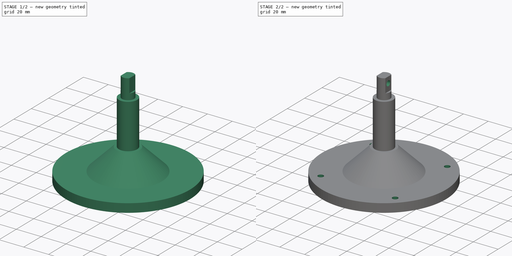
[diagram: build sequence overview — one tinted view per stage of 2, left to right]
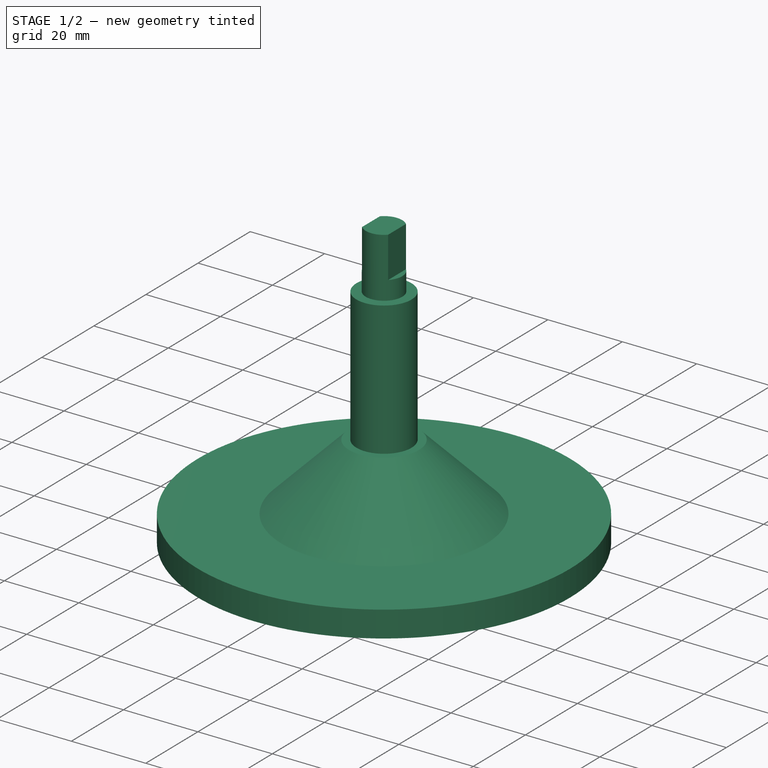
[diagram: stage 1 of 2 — iso view after this stage's code; geometry added in this stage tinted green]
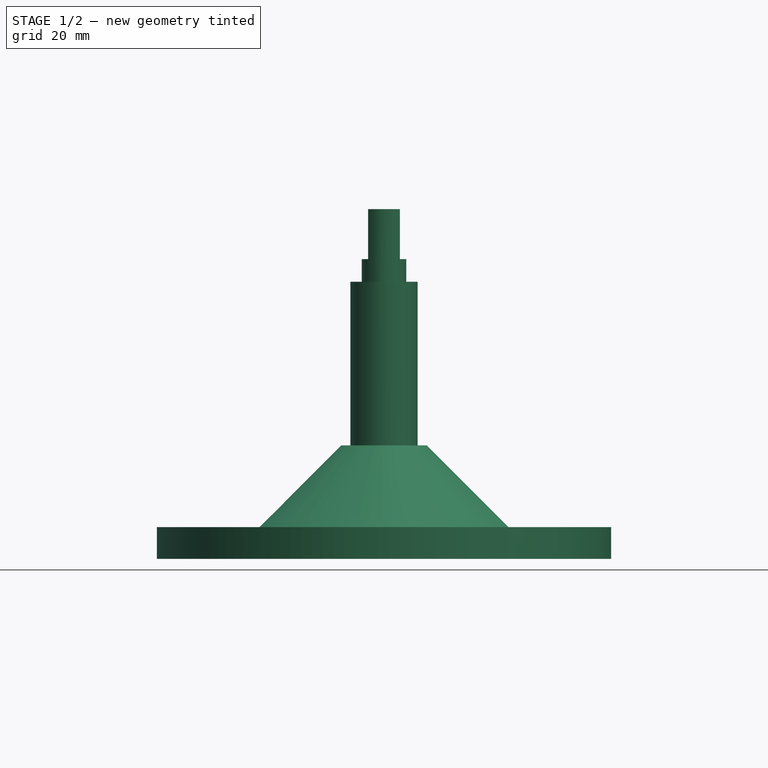
[diagram: stage 1 of 2 — front view after this stage's code; geometry added in this stage tinted green]
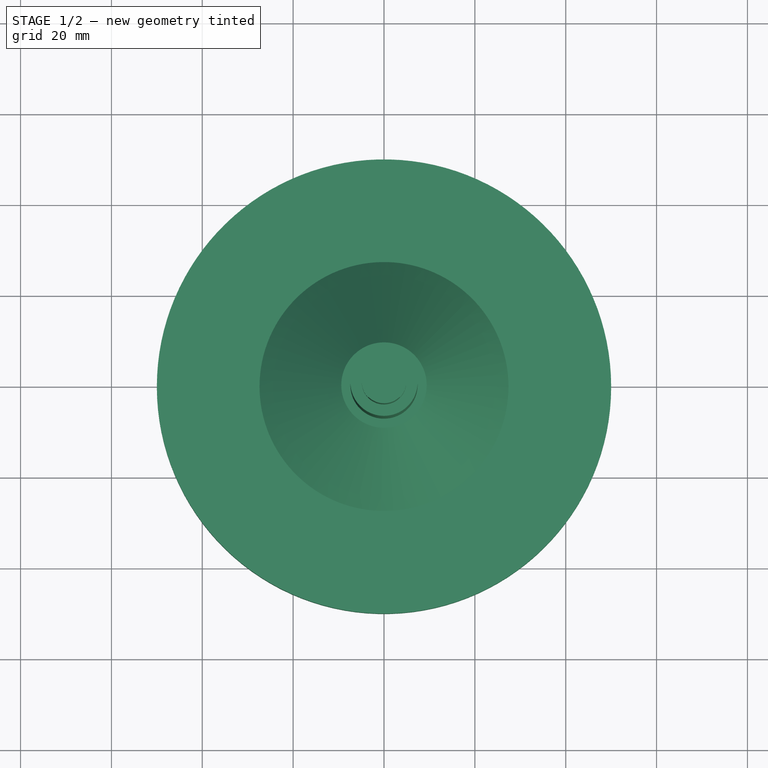
[diagram: stage 1 of 2 — top view after this stage's code; geometry added in this stage tinted green]
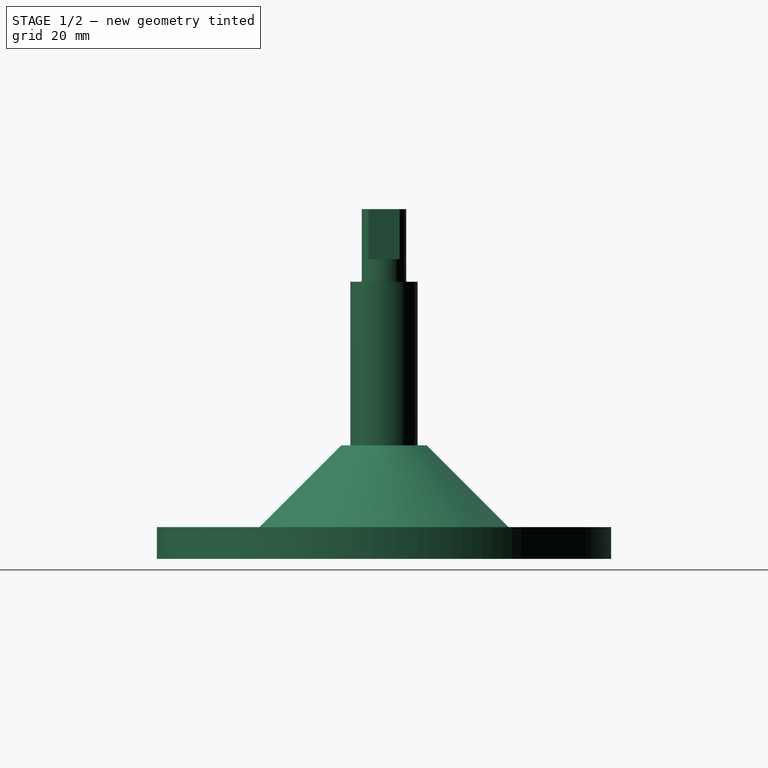
[diagram: stage 1 of 2 — right view after this stage's code; geometry added in this stage tinted green]
FCSTD DOCUMENT  (FreeCAD 0.19R22262 (Git))
Label: ToolChangerHolder_V2_Pillar
License: All rights reserved
LicenseURL: http://en.wikipedia.org/wiki/All_rights_reserved
objects: Sketcher::SketchObject×4, PartDesign::Plane×3, PartDesign::Pocket×3, PartDesign::Revolution×1, PartDesign::Body×1
note: 16 computed .brp shape members not serialized (recipe doc carries the construction recipe); baked Part::Feature solids carry a one-line shape summary decoded from their .brp

FEATURE [Sketcher::SketchObject] Sketch
  MapMode = 5
  Placement = pos=(0,0,0) rot=(1,0,0;1.5708rad)
  Support = -> [XZ_Plane]
  sketch-geometry (10):
    g0: LineSegment StartX=0 StartY=0 StartZ=0 EndX=50 EndY=0 EndZ=0
    g1: LineSegment StartX=50 StartY=0 StartZ=0 EndX=50 EndY=7 EndZ=0
    g2: LineSegment StartX=50 StartY=7 StartZ=0 EndX=27.4 EndY=7 EndZ=0
    g3: LineSegment StartX=27.4 StartY=7 StartZ=0 EndX=9.4 EndY=25 EndZ=0
    g4: LineSegment StartX=9.4 StartY=25 StartZ=0 EndX=7.4 EndY=25 EndZ=0
    g5: LineSegment StartX=7.4 StartY=25 StartZ=0 EndX=7.4 EndY=61 EndZ=0
    g6: LineSegment StartX=7.4 StartY=61 StartZ=0 EndX=4.9 EndY=61 EndZ=0
    g7: LineSegment StartX=4.9 StartY=61 StartZ=0 EndX=4.9 EndY=77 EndZ=0
    g8: LineSegment StartX=4.9 StartY=77 StartZ=0 EndX=0 EndY=77 EndZ=0
    g9: LineSegment StartX=0 StartY=77 StartZ=0 EndX=0 EndY=0 EndZ=0
  constraints (29):
    c: Coincident(g-1,g0)
    c: Horizontal(g0)
    c: Coincident(g0,g1)
    c: Vertical(g1)
    c: Coincident(g1,g2)
    c: Horizontal(g2)
    c: Coincident(g2,g3)
    c: Coincident(g3,g4)
    c: Horizontal(g4)
    c: Coincident(g4,g5)
    c: Vertical(g5)
    c: Coincident(g5,g6)
    c: Coincident(g6,g7)
    c: Vertical(g7)
    c: Coincident(g7,g8)
    c: Horizontal(g8)
    c: Coincident(g8,g9)
    c: Coincident(g9,g0)
    c: Vertical(g9)
    c: DistanceX(g0,g0) = 50
    c: DistanceY(g1,g1) = 7
    c: Angle(g3,g-1) = 0.785398
    c: DistanceX(g4,g4) = 2
    c: DistanceY(g0,g4) = 25
    c: DistanceX(g0,g4) = 7.4
    c: DistanceX(g0,g6) = 4.9
    c: DistanceY(g4,g6) = 36
    c: Horizontal(g6)
    c: DistanceY(g6,g8) = 16
FEATURE [PartDesign::Revolution] Revolution
  Angle = 360
  Axis = (0,2e-16,1)
  Base = (0,0,0)
  Placement = pos=(0,0,0) rot=(1,0,0;1.5708rad)
  Profile = -> Sketch
  ReferenceAxis = -> Sketch [V_Axis]
  Refine = true
  Reversed = true
FEATURE [PartDesign::Plane] DatumPlane
  Length = 119.74
  MapMode = 5
  Placement = pos=(0,5.13e-14,77) rot=(0,0,1;3.14159rad)
  ResizeMode = 0
  Support = -> [Revolution]
  Width = 119.853
FEATURE [Sketcher::SketchObject] Sketch001
  MapMode = 5
  Placement = pos=(0,5.13e-14,77) rot=(0,0,1;3.14159rad)
  Support = -> [DatumPlane]
  sketch-geometry (8):
    g0: LineSegment StartX=-3.5 StartY=6 StartZ=0 EndX=3.5 EndY=6 EndZ=0
    g1: LineSegment StartX=3.5 StartY=6 StartZ=0 EndX=3.5 EndY=-6 EndZ=0
    g2: LineSegment StartX=3.5 StartY=-6 StartZ=0 EndX=-3.5 EndY=-6 EndZ=0
    g3: LineSegment StartX=-3.5 StartY=-6 StartZ=0 EndX=-3.5 EndY=6 EndZ=0
    g4: LineSegment StartX=-6.63642 StartY=9.99867 StartZ=0 EndX=6.63642 EndY=9.99867 EndZ=0
    g5: LineSegment StartX=6.63642 StartY=9.99867 StartZ=0 EndX=6.63642 EndY=-9.99867 EndZ=0
    g6: LineSegment StartX=6.63642 StartY=-9.99867 StartZ=0 EndX=-6.63642 EndY=-9.99867 EndZ=0
    g7: LineSegment StartX=-6.63642 StartY=-9.99867 StartZ=0 EndX=-6.63642 EndY=9.99867 EndZ=0
  constraints (20):
    c: Coincident(g0,g1)
    c: Coincident(g1,g2)
    c: Coincident(g2,g3)
    c: Coincident(g3,g0)
    c: Horizontal(g0)
    c: Horizontal(g2)
    c: Vertical(g1)
    c: Vertical(g3)
    c: Symmetric(g0,g1,g-1)
    c: DistanceX(g0,g0) = 7
    c: DistanceY(g1,g1) = 12
    c: Coincident(g4,g5)
    c: Coincident(g5,g6)
    c: Coincident(g6,g7)
    c: Coincident(g7,g4)
    c: Horizontal(g4)
    c: Horizontal(g6)
    c: Vertical(g5)
    c: Vertical(g7)
    c: Symmetric(g4,g5,g-1)
FEATURE [PartDesign::Pocket] Pocket
  BaseFeature = -> Revolution
  Length = 11
  Length2 = 100
  Placement = pos=(0,0,0) rot=(1,0,0;1.5708rad)
  Profile = -> Sketch001
  Refine = true
  Type = 0
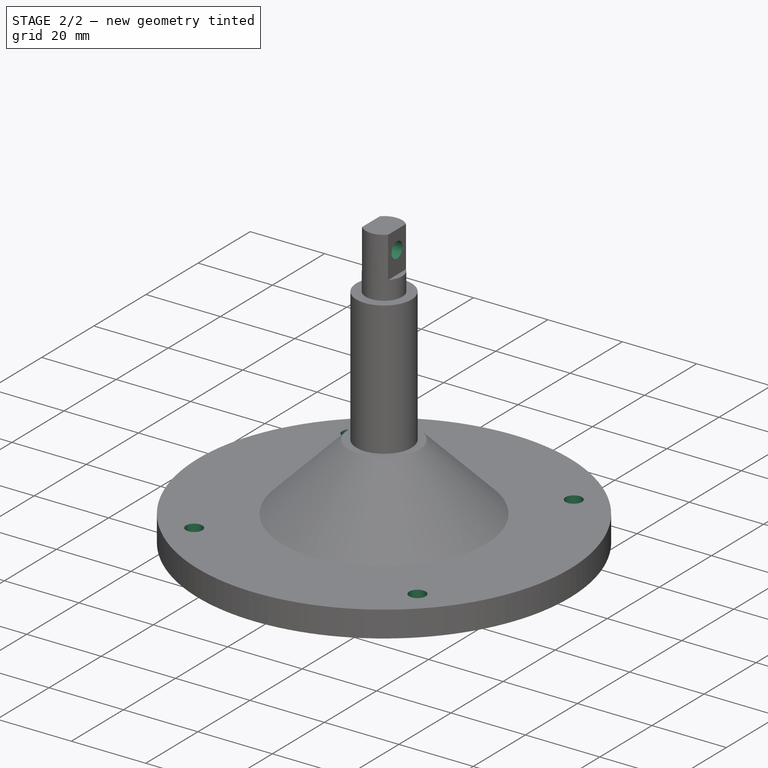
[diagram: stage 2 of 2 — iso view after this stage's code; geometry added in this stage tinted green]
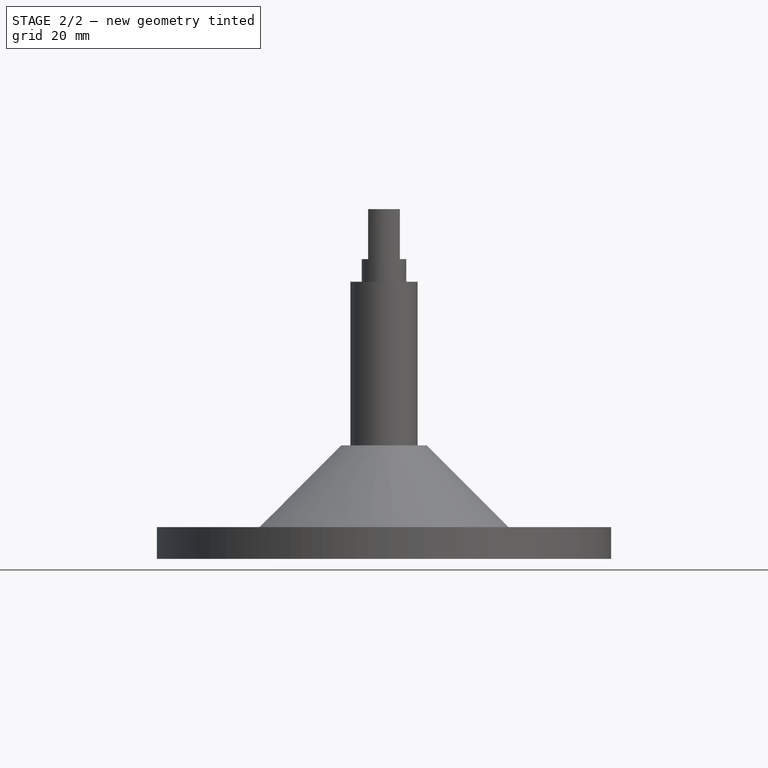
[diagram: stage 2 of 2 — front view after this stage's code; geometry added in this stage tinted green]
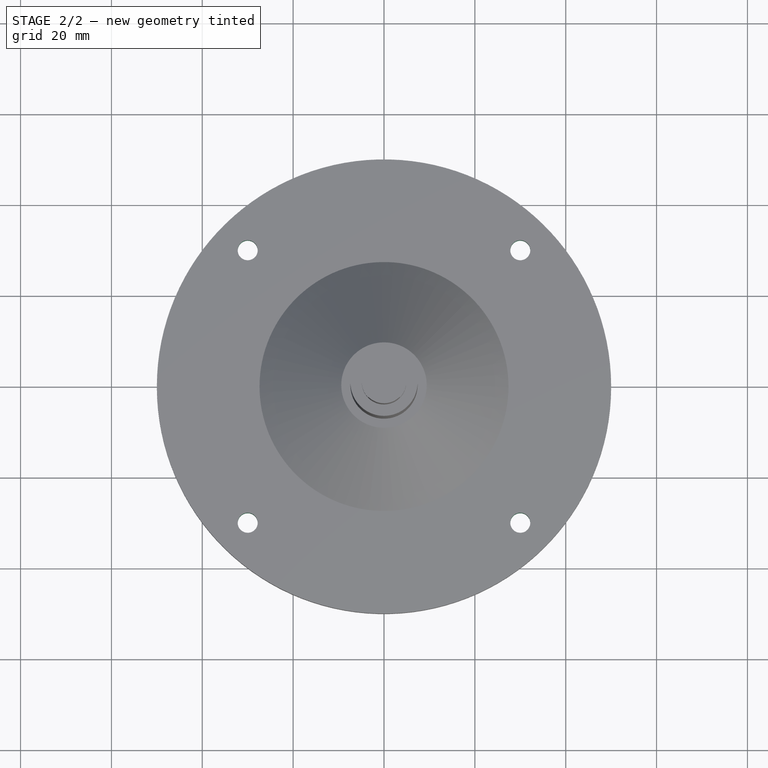
[diagram: stage 2 of 2 — top view after this stage's code; geometry added in this stage tinted green]
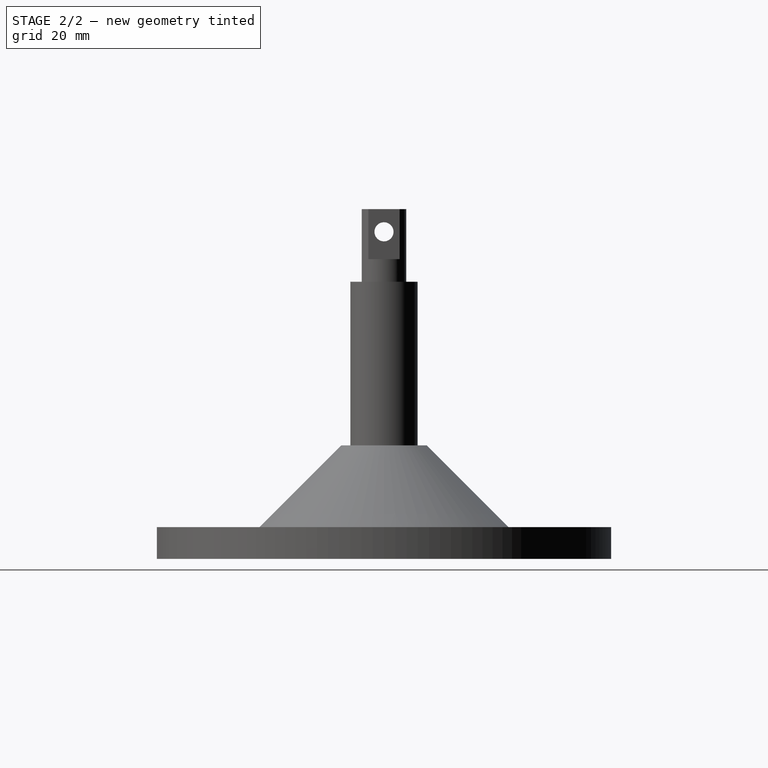
[diagram: stage 2 of 2 — right view after this stage's code; geometry added in this stage tinted green]
FEATURE [PartDesign::Plane] DatumPlane001
  Length = 122.188
  MapMode = 5
  Placement = pos=(3.5,0,0) rot=(0.707107,0,0.707107;3.14159rad)
  ResizeMode = 0
  Support = -> [Pocket]
  Width = 120.074
FEATURE [Sketcher::SketchObject] Sketch002
  MapMode = 5
  Placement = pos=(3.5,0,0) rot=(0.707107,0,0.707107;3.14159rad)
  Support = -> [DatumPlane001]
  sketch-geometry (1):
    g0: Circle CenterX=72 CenterY=0 CenterZ=0 NormalX=0 NormalY=0 NormalZ=1 AngleXU=0 Radius=2.1
  constraints (3):
    c: PointOnObject(g0,g-1)
    c: Diameter(g0) = 4.2
    c: DistanceX(g-1,g0) = 72
FEATURE [PartDesign::Pocket] Pocket001
  BaseFeature = -> Pocket
  Length = 5
  Length2 = 100
  Placement = pos=(0,0,0) rot=(1,0,0;1.5708rad)
  Profile = -> Sketch002
  Refine = true
  Type = 1
FEATURE [PartDesign::Plane] DatumPlane002
  Length = 119.74
  MapMode = 5
  Placement = pos=(0,0,0) rot=(1,0,0;3.14159rad)
  ResizeMode = 0
  Support = -> [Pocket001]
  Width = 119.853
FEATURE [Sketcher::SketchObject] Sketch003
  MapMode = 5
  Placement = pos=(0,0,0) rot=(1,0,0;3.14159rad)
  Support = -> [DatumPlane002]
  sketch-geometry (4):
    g0: Circle CenterX=30 CenterY=30 CenterZ=0 NormalX=0 NormalY=0 NormalZ=1 AngleXU=0 Radius=2.2
    g1: Circle CenterX=-30 CenterY=30 CenterZ=0 NormalX=0 NormalY=0 NormalZ=1 AngleXU=0 Radius=2.2
    g2: Circle CenterX=-30 CenterY=-30 CenterZ=0 NormalX=0 NormalY=0 NormalZ=1 AngleXU=0 Radius=2.2
    g3: Circle CenterX=30 CenterY=-30 CenterZ=0 NormalX=0 NormalY=0 NormalZ=1 AngleXU=0 Radius=2.2
  constraints (11):
    c: Diameter(g0) = 4.4
    c: Equal(g0,g1)
    c: Equal(g1,g2)
    c: Equal(g2,g3)
    c: Vertical(g2,g1)
    c: Vertical(g0,g3)
    c: Horizontal(g3,g2)
    c: Horizontal(g1,g0)
    c: Symmetric(g1,g3,g-1)
    c: DistanceX(g2,g3) = 60
    c: DistanceY(g3,g0) = 60
FEATURE [PartDesign::Pocket] Pocket002
  BaseFeature = -> Pocket001
  Length = 5
  Length2 = 100
  Placement = pos=(0,0,0) rot=(1,0,0;1.5708rad)
  Profile = -> Sketch003
  Refine = true
  Type = 1
FEATURE [PartDesign::Body] Body
  Group = -> [Sketch,Revolution,DatumPlane,Sketch001,Pocket,DatumPlane001,Sketch002,Pocket001,DatumPlane002,Sketch003,Pocket002]
  Origin = -> Origin
  Tip = -> Pocket002
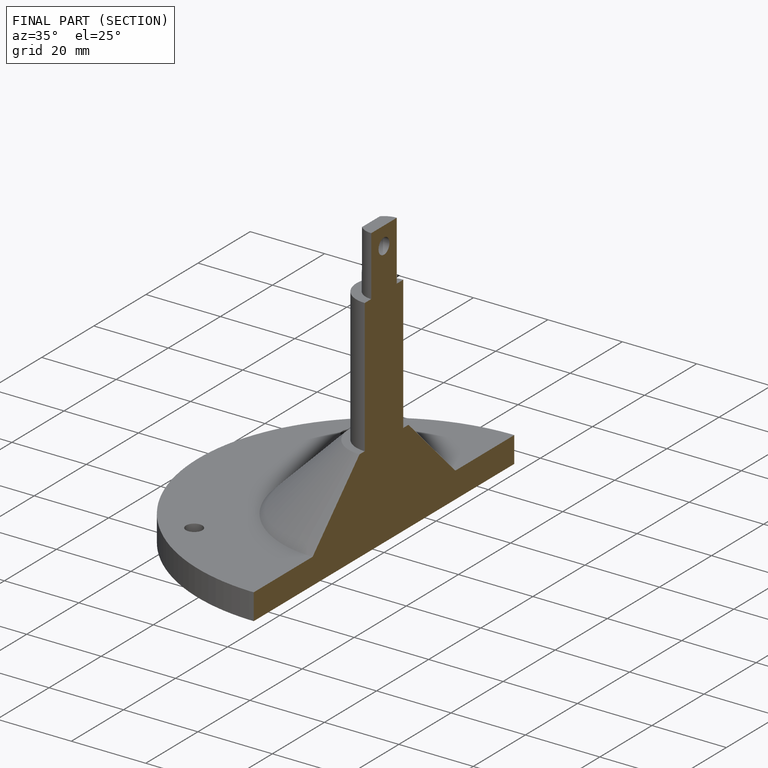
[diagram: finished part — half-section view (interior)]
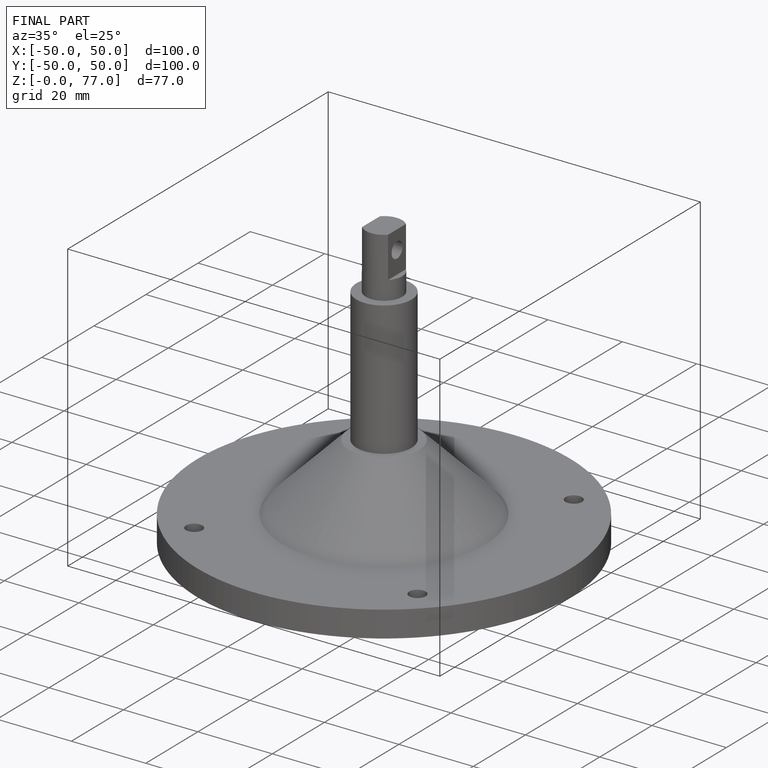
[diagram: finished part — iso view with bounding-box wireframe]
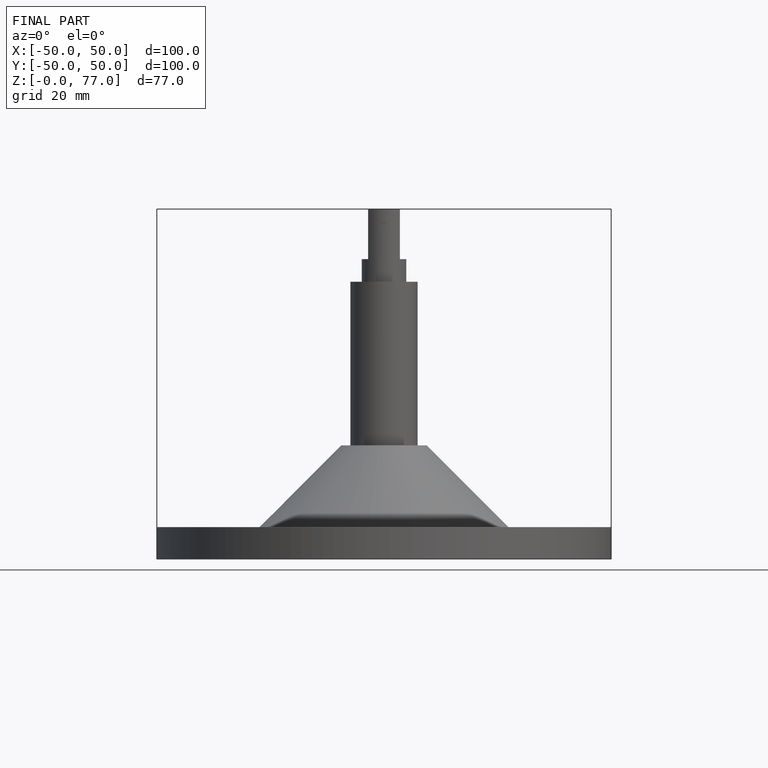
[diagram: finished part — front view with bounding-box wireframe]
